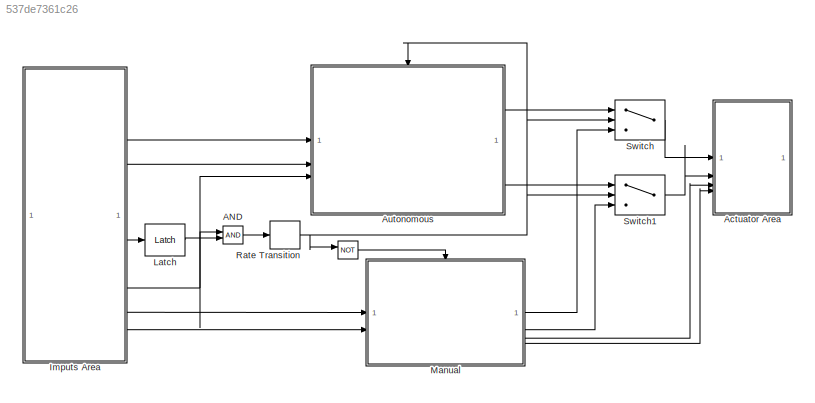
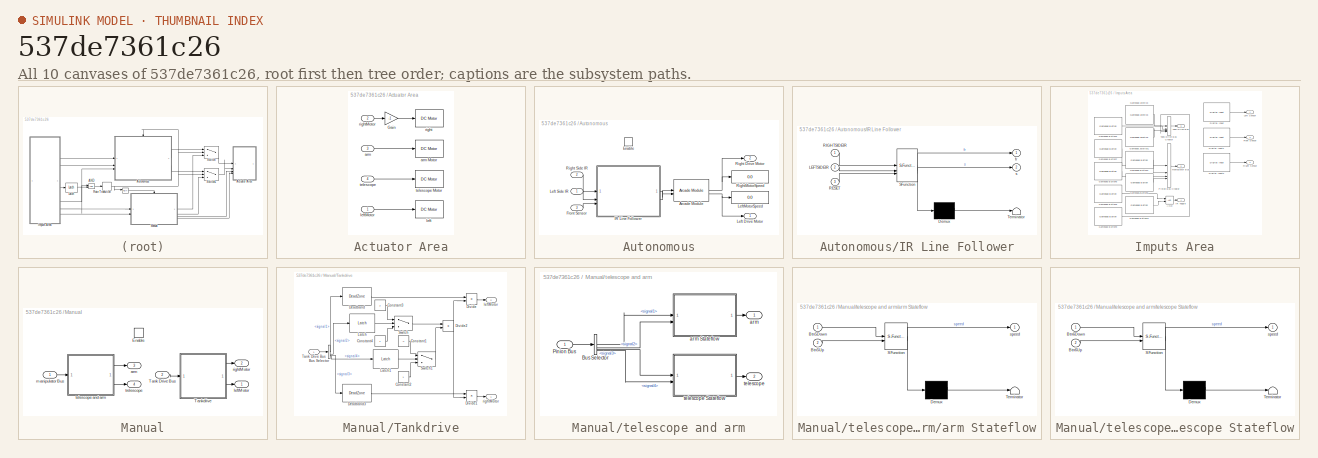
[diagram: thumbnail index - all 10 canvases of the model, root first then tree order]
MODEL slx_537de7361c26
KIND model
CONFIG AbsTol = auto
CONFIG EnableMultiTasking = off
CONFIG FixedStep = auto
CONFIG MaxStep = auto
CONFIG MinStep = auto
CONFIG RelTol = 1e-3
CONFIG SampleTimeConstraint = Unconstrained
CONFIG SolverName = VariableStepAuto
CONFIG StartTime = 0.0
CONFIG StopTime = 10.0
BLOCK [Logic]  
  AllPortsSameDT = off
  IconShape = distinctive
  Operator = NOT
  OutDataTypeStr = boolean
BLOCK [Logic] AND
  AllPortsSameDT = off
  IconShape = distinctive
  OutDataTypeStr = boolean
BLOCK [SubSystem] Actuator Area
BLOCK [Gain] Actuator Area/Gain
  Gain = -1
BLOCK [Inport] Actuator Area/arm
  Port = 3
BLOCK [Reference] Actuator Area/arm Motor  REF=vexarmcortexlib/Actuators/DC Motor
  SourceBlock = vexarmcortexlib/Actuators/DC Motor
  SourceType = DC Motor
BLOCK [Reference] Actuator Area/left  REF=vexarmcortexlib/Actuators/DC Motor
  SourceBlock = vexarmcortexlib/Actuators/DC Motor
  SourceType = DC Motor
BLOCK [Inport] Actuator Area/leftMotor
BLOCK [Reference] Actuator Area/right  REF=vexarmcortexlib/Actuators/DC Motor
  SourceBlock = vexarmcortexlib/Actuators/DC Motor
  SourceType = DC Motor
BLOCK [Inport] Actuator Area/rightMotor
  Port = 2
BLOCK [Inport] Actuator Area/telescope
  Port = 4
BLOCK [Reference] Actuator Area/telescope Motor  REF=vexarmcortexlib/Actuators/DC Motor
  SourceBlock = vexarmcortexlib/Actuators/DC Motor
  SourceType = DC Motor
BLOCK [SubSystem] Autonomous
  TreatAsAtomicUnit = on
BLOCK [Reference] Autonomous/Arcade Module  REF=vexcommonlib/Arcade Module
  SourceBlock = vexcommonlib/Arcade Module
  SourceType = Arcade-2 Motors Module
BLOCK [EnablePort] Autonomous/Enable
  StatesWhenEnabling = reset
BLOCK [Inport] Autonomous/Front Sensor
  Port = 3
BLOCK [SubSystem] Autonomous/IR Line Follower
  ErrorFcn = Stateflow.Translate.translate
  PermitHierarchicalResolution = ExplicitOnly
  SFBlockType = Chart
  TreatAsAtomicUnit = on
BLOCK [Demux] Autonomous/IR Line Follower/ Demux 
  Outputs = 1
BLOCK [S-Function] Autonomous/IR Line Follower/ SFunction 
  EnableBusSupport = on
  FunctionName = sf_sfun
  PortCounts = [3 3]
  SFcnIsStateOwnerBlock = off
  SFunctionDeploymentMode = off
  Tag = Stateflow S-Function 2
BLOCK [Terminator] Autonomous/IR Line Follower/ Terminator 
BLOCK [Inport] Autonomous/IR Line Follower/LEFTSIDEIR
  Port = 2
BLOCK [Inport] Autonomous/IR Line Follower/RESET
  Port = 3
BLOCK [Inport] Autonomous/IR Line Follower/RIGHTSIDEIR
BLOCK [Outport] Autonomous/IR Line Follower/fr
BLOCK [Outport] Autonomous/IR Line Follower/s
  Port = 2
BLOCK [Outport] Autonomous/Left Drive Motor
BLOCK [Inport] Autonomous/Left Side IR
BLOCK [Display] Autonomous/LeftMotorSpeed
  Decimation = 1
BLOCK [Outport] Autonomous/Right Drive Motor
  Port = 2
BLOCK [Inport] Autonomous/Right Side IR
  Port = 2
BLOCK [Display] Autonomous/RightMotorSpeed
  Decimation = 1
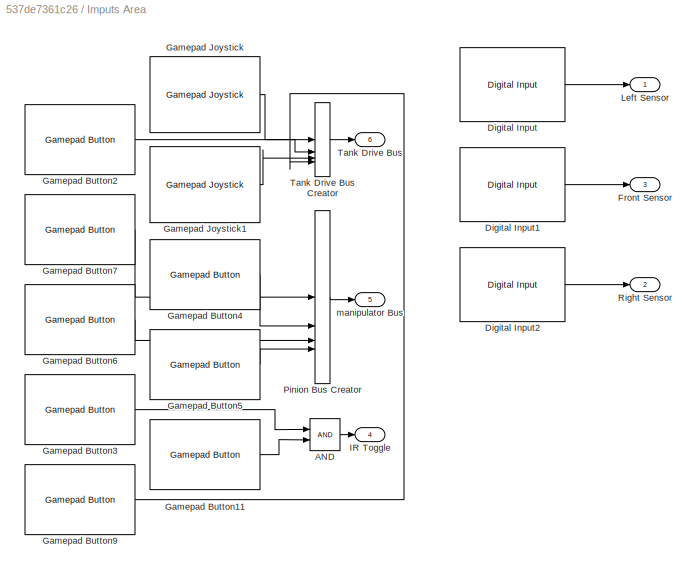
BLOCK [SubSystem] Imputs Area
BLOCK [Logic] Imputs Area/AND
  AllPortsSameDT = off
  IconShape = distinctive
  OutDataTypeStr = boolean
BLOCK [Reference] Imputs Area/Digital Input  REF=vexarmcortexlib/Sensors/Digital Input
  SourceBlock = vexarmcortexlib/Sensors/Digital Input
  SourceType = Digital Input
BLOCK [Reference] Imputs Area/Digital Input1  REF=vexarmcortexlib/Sensors/Digital Input
  SourceBlock = vexarmcortexlib/Sensors/Digital Input
  SourceType = Digital Input
BLOCK [Reference] Imputs Area/Digital Input2  REF=vexarmcortexlib/Sensors/Digital Input
  SourceBlock = vexarmcortexlib/Sensors/Digital Input
  SourceType = Digital Input
BLOCK [Outport] Imputs Area/Front Sensor
  Port = 3
BLOCK [Reference] Imputs Area/Gamepad Button11  REF=vexarmcortexlib/Gamepad/Gamepad Button
  SourceBlock = vexarmcortexlib/Gamepad/Gamepad Button
  SourceType = Gamepad Button
BLOCK [Reference] Imputs Area/Gamepad Button2  REF=vexarmcortexlib/Gamepad/Gamepad Button
  SourceBlock = vexarmcortexlib/Gamepad/Gamepad Button
  SourceType = Gamepad Button
BLOCK [Reference] Imputs Area/Gamepad Button3  REF=vexarmcortexlib/Gamepad/Gamepad Button
  SourceBlock = vexarmcortexlib/Gamepad/Gamepad Button
  SourceType = Gamepad Button
BLOCK [Reference] Imputs Area/Gamepad Button4  REF=vexarmcortexlib/Gamepad/Gamepad Button
  SourceBlock = vexarmcortexlib/Gamepad/Gamepad Button
  SourceType = Gamepad Button
BLOCK [Reference] Imputs Area/Gamepad Button5  REF=vexarmcortexlib/Gamepad/Gamepad Button
  SourceBlock = vexarmcortexlib/Gamepad/Gamepad Button
  SourceType = Gamepad Button
BLOCK [Reference] Imputs Area/Gamepad Button6  REF=vexarmcortexlib/Gamepad/Gamepad Button
  SourceBlock = vexarmcortexlib/Gamepad/Gamepad Button
  SourceType = Gamepad Button
BLOCK [Reference] Imputs Area/Gamepad Button7  REF=vexarmcortexlib/Gamepad/Gamepad Button
  SourceBlock = vexarmcortexlib/Gamepad/Gamepad Button
  SourceType = Gamepad Button
BLOCK [Reference] Imputs Area/Gamepad Button9  REF=vexarmcortexlib/Gamepad/Gamepad Button
  SourceBlock = vexarmcortexlib/Gamepad/Gamepad Button
  SourceType = Gamepad Button
BLOCK [Reference] Imputs Area/Gamepad Joystick  REF=vexarmcortexlib/Gamepad/Gamepad Joystick
  SourceBlock = vexarmcortexlib/Gamepad/Gamepad Joystick
  SourceType = Gamepad Joystick
BLOCK [Reference] Imputs Area/Gamepad Joystick1  REF=vexarmcortexlib/Gamepad/Gamepad Joystick
  SourceBlock = vexarmcortexlib/Gamepad/Gamepad Joystick
  SourceType = Gamepad Joystick
BLOCK [Outport] Imputs Area/IR Toggle
  Port = 4
BLOCK [Outport] Imputs Area/Left Sensor
BLOCK [BusCreator] Imputs Area/Pinion Bus Creator
  DisplayOption = bar
  InheritFromInputs = on
  Inputs = 4
BLOCK [Outport] Imputs Area/Right Sensor
  Port = 2
BLOCK [Outport] Imputs Area/Tank Drive Bus
  Port = 6
BLOCK [BusCreator] Imputs Area/Tank Drive Bus Creator
  DisplayOption = bar
  InheritFromInputs = on
  Inputs = 4
BLOCK [Outport] Imputs Area/manipulator Bus
  Port = 5
BLOCK [Reference] Latch  REF=vexcommonlib/Latch
  SourceBlock = vexcommonlib/Latch
  SourceType = Latch
BLOCK [SubSystem] Manual
  TreatAsAtomicUnit = on
BLOCK [EnablePort] Manual/Enable
BLOCK [Inport] Manual/Tank Drive Bus
  Port = 2
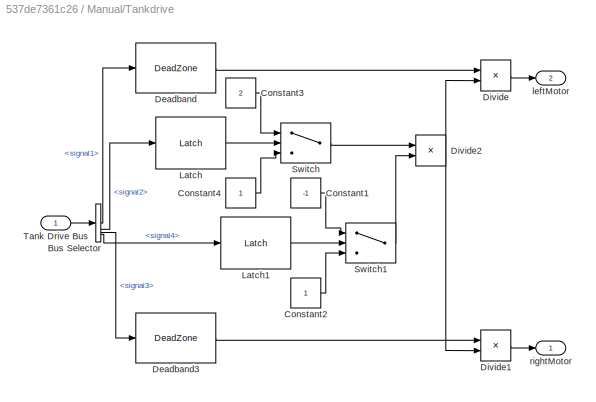
BLOCK [SubSystem] Manual/Tankdrive
BLOCK [BusSelector] Manual/Tankdrive/Bus Selector
  OutputSignals = signal1,signal2,signal3,signal4
BLOCK [Constant] Manual/Tankdrive/Constant1
  Value = -1
BLOCK [Constant] Manual/Tankdrive/Constant2
BLOCK [Constant] Manual/Tankdrive/Constant3
  Value = 2
BLOCK [Constant] Manual/Tankdrive/Constant4
BLOCK [DeadZone] Manual/Tankdrive/Deadband
  LowerValue = -9
  UpperValue = 9
BLOCK [DeadZone] Manual/Tankdrive/Deadband3
  LowerValue = -9
  UpperValue = 9
BLOCK [Product] Manual/Tankdrive/Divide
  Inputs = */
BLOCK [Product] Manual/Tankdrive/Divide1
  Inputs = */
BLOCK [Product] Manual/Tankdrive/Divide2
  Inputs = */
BLOCK [Reference] Manual/Tankdrive/Latch  REF=vexcommonlib/Latch
  LibrarySourceBlock = vexarmcortexlib/Utilities/Latch
  SourceBlock = vexcommonlib/Latch
  SourceType = Latch
BLOCK [Reference] Manual/Tankdrive/Latch1  REF=vexcommonlib/Latch
  LibrarySourceBlock = vexarmcortexlib/Utilities/Latch
  SourceBlock = vexcommonlib/Latch
  SourceType = Latch
BLOCK [Switch] Manual/Tankdrive/Switch
  Criteria = u2 > Threshold
  InputSameDT = off
  SaturateOnIntegerOverflow = off
BLOCK [Switch] Manual/Tankdrive/Switch1
  Criteria = u2 > Threshold
  InputSameDT = off
  SaturateOnIntegerOverflow = off
BLOCK [Inport] Manual/Tankdrive/Tank Drive Bus
BLOCK [Outport] Manual/Tankdrive/leftMotor
  Port = 2
BLOCK [Outport] Manual/Tankdrive/rightMotor
BLOCK [Outport] Manual/arm
  Port = 3
BLOCK [Outport] Manual/leftMotor
BLOCK [Inport] Manual/manipulator Bus
BLOCK [Outport] Manual/rightMotor
  Port = 2
BLOCK [SubSystem] Manual/telescope and arm
BLOCK [BusSelector] Manual/telescope and arm/Bus Selector
  OutputSignals = signal1,signal2,signal3,signal4
BLOCK [Inport] Manual/telescope and arm/Pinion Bus
BLOCK [Outport] Manual/telescope and arm/arm
BLOCK [SubSystem] Manual/telescope and arm/arm Stateflow
  ErrorFcn = Stateflow.Translate.translate
  PermitHierarchicalResolution = ExplicitOnly
  SFBlockType = Chart
  TreatAsAtomicUnit = on
BLOCK [Demux] Manual/telescope and arm/arm Stateflow/ Demux 
  Outputs = 1
BLOCK [S-Function] Manual/telescope and arm/arm Stateflow/ SFunction 
  EnableBusSupport = on
  FunctionName = sf_sfun
  PortCounts = [2 2]
  SFcnIsStateOwnerBlock = off
  SFunctionDeploymentMode = off
  Tag = Stateflow S-Function 5
BLOCK [Terminator] Manual/telescope and arm/arm Stateflow/ Terminator 
BLOCK [Inport] Manual/telescope and arm/arm Stateflow/Btn5Down
BLOCK [Inport] Manual/telescope and arm/arm Stateflow/Btn5Up
  Port = 2
BLOCK [Outport] Manual/telescope and arm/arm Stateflow/speed
BLOCK [Outport] Manual/telescope and arm/telescope
  Port = 2
BLOCK [SubSystem] Manual/telescope and arm/telescope Stateflow
  ErrorFcn = Stateflow.Translate.translate
  PermitHierarchicalResolution = ExplicitOnly
  SFBlockType = Chart
  TreatAsAtomicUnit = on
BLOCK [Demux] Manual/telescope and arm/telescope Stateflow/ Demux 
  Outputs = 1
BLOCK [S-Function] Manual/telescope and arm/telescope Stateflow/ SFunction 
  EnableBusSupport = on
  FunctionName = sf_sfun
  PortCounts = [2 2]
  SFcnIsStateOwnerBlock = off
  SFunctionDeploymentMode = off
  Tag = Stateflow S-Function 4
BLOCK [Terminator] Manual/telescope and arm/telescope Stateflow/ Terminator 
BLOCK [Inport] Manual/telescope and arm/telescope Stateflow/Btn6Down
BLOCK [Inport] Manual/telescope and arm/telescope Stateflow/Btn6Up
  Port = 2
BLOCK [Outport] Manual/telescope and arm/telescope Stateflow/speed
BLOCK [Outport] Manual/trelescope
  Port = 4
BLOCK [RateTransition] Rate Transition
BLOCK [Switch] Switch
  InputSameDT = off
  SaturateOnIntegerOverflow = off
  Threshold = 1
BLOCK [Switch] Switch1
  InputSameDT = off
  SaturateOnIntegerOverflow = off
  Threshold = 1
LINE  :1 -> Manual:enable
LINE AND:1 -> Rate Transition:1
LINE Actuator Area/Gain:1 -> Actuator Area/right:1
LINE Actuator Area/arm:1 -> Actuator Area/arm Motor:1
LINE Actuator Area/leftMotor:1 -> Actuator Area/left:1
LINE Actuator Area/rightMotor:1 -> Actuator Area/Gain:1
LINE Actuator Area/telescope:1 -> Actuator Area/telescope Motor:1
NET Autonomous/Arcade Module:1 -> Autonomous/Right Drive Motor:1, Autonomous/RightMotorSpeed:1
NET Autonomous/Arcade Module:2 -> Autonomous/Left Drive Motor:1, Autonomous/LeftMotorSpeed:1
LINE Autonomous/Front Sensor:1 -> Autonomous/IR Line Follower:3
LINE Autonomous/IR Line Follower:1 -> Autonomous/Arcade Module:1
LINE Autonomous/IR Line Follower:2 -> Autonomous/Arcade Module:2
LINE Autonomous/Left Side IR:1 -> Autonomous/IR Line Follower:2
LINE Autonomous/Right Side IR:1 -> Autonomous/IR Line Follower:1
LINE Autonomous:1 -> Switch:1
LINE Autonomous:2 -> Switch1:1
LINE Imputs Area/AND:1 -> Imputs Area/IR Toggle:1
LINE Imputs Area/Digital Input1:1 -> Imputs Area/Front Sensor:1
LINE Imputs Area/Digital Input2:1 -> Imputs Area/Right Sensor:1
LINE Imputs Area/Digital Input:1 -> Imputs Area/Left Sensor:1
LINE Imputs Area/Gamepad Button11:1 -> Imputs Area/AND:2
LINE Imputs Area/Gamepad Button2:1 -> Imputs Area/Tank Drive Bus Creator:2
LINE Imputs Area/Gamepad Button3:1 -> Imputs Area/AND:1
LINE Imputs Area/Gamepad Button4:1 -> Imputs Area/Pinion Bus Creator:2
LINE Imputs Area/Gamepad Button5:1 -> Imputs Area/Pinion Bus Creator:4
LINE Imputs Area/Gamepad Button6:1 -> Imputs Area/Pinion Bus Creator:3
LINE Imputs Area/Gamepad Button7:1 -> Imputs Area/Pinion Bus Creator:1
LINE Imputs Area/Gamepad Button9:1 -> Imputs Area/Tank Drive Bus Creator:4
LINE Imputs Area/Gamepad Joystick1:1 -> Imputs Area/Tank Drive Bus Creator:3
LINE Imputs Area/Gamepad Joystick:1 -> Imputs Area/Tank Drive Bus Creator:1
LINE Imputs Area/Pinion Bus Creator:1 -> Imputs Area/manipulator Bus:1
LINE Imputs Area/Tank Drive Bus Creator:1 -> Imputs Area/Tank Drive Bus:1
LINE Imputs Area:1 -> Autonomous:1
LINE Imputs Area:2 -> Autonomous:2
NET Imputs Area:3 -> AND:1, Autonomous:3
LINE Imputs Area:4 -> Latch:1
LINE Imputs Area:5 -> Manual:1
LINE Imputs Area:6 -> Manual:2
LINE Latch:1 -> AND:2
LINE Manual/Tank Drive Bus:1 -> Manual/Tankdrive:1
LINE Manual/Tankdrive/Bus Selector:1 -> Manual/Tankdrive/Deadband:1
LINE Manual/Tankdrive/Bus Selector:2 -> Manual/Tankdrive/Latch:1
LINE Manual/Tankdrive/Bus Selector:3 -> Manual/Tankdrive/Deadband3:1
LINE Manual/Tankdrive/Bus Selector:4 -> Manual/Tankdrive/Latch1:1
LINE Manual/Tankdrive/Constant1:1 -> Manual/Tankdrive/Switch1:1
LINE Manual/Tankdrive/Constant2:1 -> Manual/Tankdrive/Switch1:3
LINE Manual/Tankdrive/Constant3:1 -> Manual/Tankdrive/Switch:1
LINE Manual/Tankdrive/Constant4:1 -> Manual/Tankdrive/Switch:3
LINE Manual/Tankdrive/Deadband3:1 -> Manual/Tankdrive/Divide1:1
LINE Manual/Tankdrive/Deadband:1 -> Manual/Tankdrive/Divide:1
LINE Manual/Tankdrive/Divide1:1 -> Manual/Tankdrive/rightMotor:1
NET Manual/Tankdrive/Divide2:1 -> Manual/Tankdrive/Divide1:2, Manual/Tankdrive/Divide:2
LINE Manual/Tankdrive/Divide:1 -> Manual/Tankdrive/leftMotor:1
LINE Manual/Tankdrive/Latch1:1 -> Manual/Tankdrive/Switch1:2
LINE Manual/Tankdrive/Latch:1 -> Manual/Tankdrive/Switch:2
LINE Manual/Tankdrive/Switch1:1 -> Manual/Tankdrive/Divide2:2
LINE Manual/Tankdrive/Switch:1 -> Manual/Tankdrive/Divide2:1
LINE Manual/Tankdrive/Tank Drive Bus:1 -> Manual/Tankdrive/Bus Selector:1
LINE Manual/Tankdrive:1 -> Manual/rightMotor:1
LINE Manual/Tankdrive:2 -> Manual/leftMotor:1
LINE Manual/manipulator Bus:1 -> Manual/telescope and arm:1
LINE Manual/telescope and arm/Bus Selector:1 -> Manual/telescope and arm/arm Stateflow:1
LINE Manual/telescope and arm/Bus Selector:2 -> Manual/telescope and arm/arm Stateflow:2
LINE Manual/telescope and arm/Bus Selector:3 -> Manual/telescope and arm/telescope Stateflow:1
LINE Manual/telescope and arm/Bus Selector:4 -> Manual/telescope and arm/telescope Stateflow:2
LINE Manual/telescope and arm/Pinion Bus:1 -> Manual/telescope and arm/Bus Selector:1
LINE Manual/telescope and arm/arm Stateflow:1 -> Manual/telescope and arm/arm:1
LINE Manual/telescope and arm/telescope Stateflow:1 -> Manual/telescope and arm/telescope:1
LINE Manual/telescope and arm:1 -> Manual/arm:1
LINE Manual/telescope and arm:2 -> Manual/trelescope:1
LINE Manual:1 -> Switch:3
LINE Manual:2 -> Switch1:3
LINE Manual:3 -> Actuator Area:3
LINE Manual:4 -> Actuator Area:4
NET Rate Transition:1 ->  :1, Autonomous:enable, Switch1:2, Switch:2
LINE Switch1:1 -> Actuator Area:2
LINE Switch:1 -> Actuator Area:1
note: NET lines group one-source signal fan-out (src -> all destinations, sorted); 1:1 wires keep LINE
CHART Manual/telescope and arm/arm Stateflow states=3 transitions=7
  STATE_LABEL 'rackIN\nentry:\nspeed=-127;'
  STATE_LABEL 'STOPPED\nentry:\nspeed=0;'
  STATE_LABEL 'rackOUT\nentry:\nspeed=127;\n'
CHART Autonomous/IR Line Follower states=4 transitions=13
  STATE_LABEL 'STRAIGHT\nentry:\nfr = -75;\ns = 0;\n'
  STATE_LABEL 'GO_LEFT\nentry:\nfr =-30;\ns = 70;\n'
  STATE_LABEL 'GO_RIGHT\nentry:\nfr =-30;\ns = -70;\n'
  STATE_LABEL 'STOP\nentry:\nfr = 0;\ns = 0;\n'
CHART Manual/telescope and arm/telescope Stateflow states=3 transitions=7
  STATE_LABEL 'rackIN\nentry:\nspeed=-127;'
  STATE_LABEL 'STOPPED\nentry:\nspeed=0;'
  STATE_LABEL 'rackOUT\nentry:\nspeed=127;\n'
CHART  states=0 transitions=0
CHART  states=0 transitions=0
CHART  states=0 transitions=0
